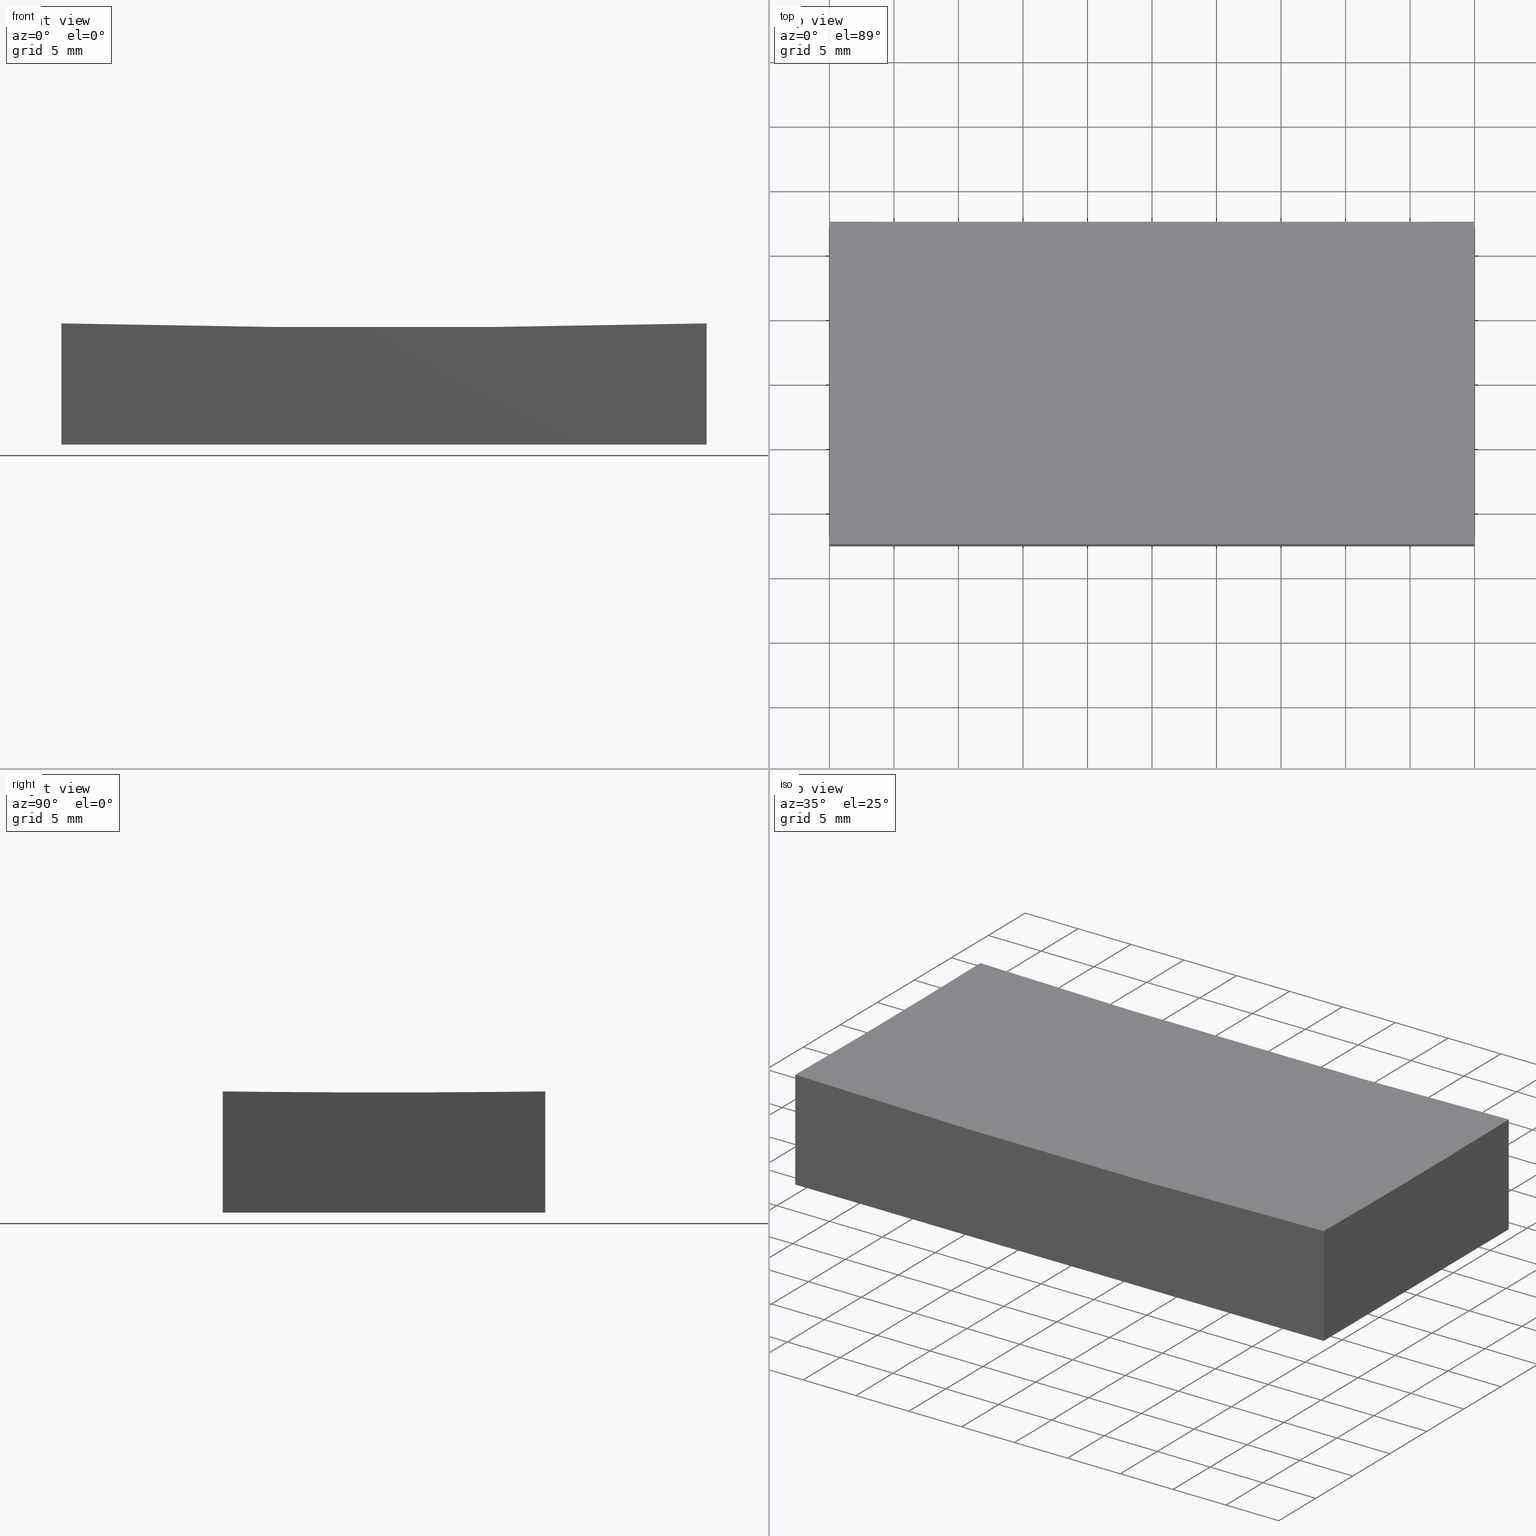
[diagram: canonical four-view strip — front | top / right | iso, engineering-drawing reading convention]
A machine part, canonical four-view strip (front | top / right | iso — engineering-drawing reading convention). The complete STEP part file that produces these views, byte-faithful:
ISO-10303-21;
HEADER;
FILE_DESCRIPTION (( 'STEP AP214' ),
    '1' );
FILE_NAME ('GM13-50x25-500.STEP',
    '2024-08-13T03:19:12',
    ( 'Windows User' ),
    ( 'P R C' ),
    'SwSTEP 2.0',
    'SolidWorks 2022',
    '' );
FILE_SCHEMA (( 'AUTOMOTIVE_DESIGN' ));
ENDSEC;

DATA;
#1 = APPLICATION_CONTEXT ( 'automotive_design' ) ;
#2 = VECTOR ( 'NONE', #8, 1000.000000000000000 ) ;
#3 = AXIS2_PLACEMENT_3D ( 'NONE', #17, #152, #212 ) ;
#4 = EDGE_LOOP ( 'NONE', ( #71, #70, #182, #217, #223 ) ) ;
#5 = LINE ( 'NONE', #66, #110 ) ;
#6 = ORIENTED_EDGE ( 'NONE', *, *, #218, .T. ) ;
#7 = LINE ( 'NONE', #101, #97 ) ;
#8 = DIRECTION ( 'NONE',  ( 1.387778780781445676E-16, -1.000000000000000000, 0.000000000000000000 ) ) ;
#9 = EDGE_CURVE ( 'NONE', #28, #202, #21, .T. ) ;
#10 =( GEOMETRIC_REPRESENTATION_CONTEXT ( 3 ) GLOBAL_UNCERTAINTY_ASSIGNED_CONTEXT ( ( #64 ) ) GLOBAL_UNIT_ASSIGNED_CONTEXT ( ( #192, #232, #107 ) ) REPRESENTATION_CONTEXT ( 'NONE', 'WORKASPACE' ) );
#11 = CARTESIAN_POINT ( 'NONE',  ( -24.99999999999998934, -12.49999999999999645, 9.390701323762185027 ) ) ;
#12 = DIRECTION ( 'NONE',  ( 0.000000000000000000, -1.000000000000000000, -0.000000000000000000 ) ) ;
#13 = DIRECTION ( 'NONE',  ( -0.000000000000000000, -0.000000000000000000, -1.000000000000000000 ) ) ;
#14 = PRODUCT_CONTEXT ( 'NONE', #1, 'mechanical' ) ;
#15 = AXIS2_PLACEMENT_3D ( 'NONE', #213, #244, #89 ) ;
#16 = PLANE ( 'NONE',  #205 ) ;
#17 = CARTESIAN_POINT ( 'NONE',  ( -25.00000000000000000, -3.469446951953614189E-15, 1008.999999999999886 ) ) ;
#18 = EDGE_CURVE ( 'NONE', #160, #28, #162, .T. ) ;
#19 = DIRECTION ( 'NONE',  ( 0.000000000000000000, 0.000000000000000000, -1.000000000000000000 ) ) ;
#20 = VECTOR ( 'NONE', #13, 1000.000000000000000 ) ;
#21 = CIRCLE ( 'NONE', #146, 1000.000000000000000 ) ;
#22 = STYLED_ITEM ( 'NONE', ( #135 ), #177 ) ;
#23 = DIRECTION ( 'NONE',  ( 1.000000000000000000, -2.775557561562891351E-16, -0.000000000000000000 ) ) ;
#24 = UNCERTAINTY_MEASURE_WITH_UNIT (LENGTH_MEASURE( 1.000000000000000082E-05 ), #113, 'distance_accuracy_value', 'NONE');
#25 = ORIENTED_EDGE ( 'NONE', *, *, #56, .F. ) ;
#26 = EDGE_CURVE ( 'NONE', #181, #195, #7, .T. ) ;
#27 = ORIENTED_EDGE ( 'NONE', *, *, #100, .F. ) ;
#28 = VERTEX_POINT ( 'NONE', #224 ) ;
#29 = CARTESIAN_POINT ( 'NONE',  ( 25.00000000000000000, -6.938893903907228378E-15, 1008.999999999999886 ) ) ;
#30 = CARTESIAN_POINT ( 'NONE',  ( -25.00000000000000000, 12.50000000000000000, 0.000000000000000000 ) ) ;
#31 = DIRECTION ( 'NONE',  ( 1.000000000000000000, 0.000000000000000000, 0.000000000000000000 ) ) ;
#32 = ADVANCED_FACE ( 'NONE', ( #48 ), #86, .F. ) ;
#33 = VECTOR ( 'NONE', #131, 1000.000000000000000 ) ;
#34 = CARTESIAN_POINT ( 'NONE',  ( 25.00000000000000355, 12.50000000000000000, 9.390701323762185027 ) ) ;
#35 = EDGE_CURVE ( 'NONE', #201, #175, #5, .T. ) ;
#36 = CARTESIAN_POINT ( 'NONE',  ( 0.000000000000000000, 12.50000000000000000, 1008.999999999999886 ) ) ;
#37 = DIRECTION ( 'NONE',  ( -0.000000000000000000, -0.000000000000000000, -1.000000000000000000 ) ) ;
#38 = STYLED_ITEM ( 'NONE', ( #243 ), #90 ) ;
#39 = ORIENTED_EDGE ( 'NONE', *, *, #77, .T. ) ;
#40 = AXIS2_PLACEMENT_3D ( 'NONE', #230, #171, #185 ) ;
#41 = ORIENTED_EDGE ( 'NONE', *, *, #78, .T. ) ;
#42 = VERTEX_POINT ( 'NONE', #81 ) ;
#43 = VECTOR ( 'NONE', #208, 1000.000000000000000 ) ;
#44 = VERTEX_POINT ( 'NONE', #184 ) ;
#45 = ORIENTED_EDGE ( 'NONE', *, *, #158, .F. ) ;
#46 = DIRECTION ( 'NONE',  ( 0.000000000000000000, 1.000000000000000000, -0.000000000000000000 ) ) ;
#47 = AXIS2_PLACEMENT_3D ( 'NONE', #60, #99, #176 ) ;
#48 = FACE_OUTER_BOUND ( 'NONE', #85, .T. ) ;
#49 = CARTESIAN_POINT ( 'NONE',  ( -25.00000000000000000, 12.50000000000000000, 0.000000000000000000 ) ) ;
#50 = FILL_AREA_STYLE ('',( #242 ) ) ;
#51 = SPHERICAL_SURFACE ( 'NONE', #245, 999.9999999999998863 ) ;
#52 = AXIS2_PLACEMENT_3D ( 'NONE', #153, #92, #227 ) ;
#53 = CARTESIAN_POINT ( 'NONE',  ( 0.000000000000000000, 0.000000000000000000, 1008.999999999999886 ) ) ;
#54 = DIRECTION ( 'NONE',  ( 1.000000000000000000, 0.000000000000000000, 0.000000000000000000 ) ) ;
#55 =( NAMED_UNIT ( * ) SI_UNIT ( $, .STERADIAN. ) SOLID_ANGLE_UNIT ( ) );
#56 = EDGE_CURVE ( 'NONE', #175, #44, #124, .T. ) ;
#57 = CIRCLE ( 'NONE', #198, 999.6874511566102228 ) ;
#58 = DIRECTION ( 'NONE',  ( -0.000000000000000000, 1.000000000000000000, -0.000000000000000000 ) ) ;
#59 = FACE_OUTER_BOUND ( 'NONE', #69, .T. ) ;
#60 = CARTESIAN_POINT ( 'NONE',  ( 0.000000000000000000, -12.49999999999999645, 1008.999999999999886 ) ) ;
#61 = ORIENTED_EDGE ( 'NONE', *, *, #196, .T. ) ;
#62 = CIRCLE ( 'NONE', #3, 999.6874511566102228 ) ;
#63 = ORIENTED_EDGE ( 'NONE', *, *, #241, .F. ) ;
#64 = UNCERTAINTY_MEASURE_WITH_UNIT (LENGTH_MEASURE( 1.000000000000000082E-05 ), #192, 'distance_accuracy_value', 'NONE');
#65 = PRODUCT_DEFINITION ( 'δ֪', '', #123, #219 ) ;
#66 = CARTESIAN_POINT ( 'NONE',  ( -25.00000000000000000, 12.50000000000000000, 15.00000000000000000 ) ) ;
#67 = MECHANICAL_DESIGN_GEOMETRIC_PRESENTATION_REPRESENTATION (  '', ( #22 ), #111 ) ;
#68 = EDGE_LOOP ( 'NONE', ( #25, #165, #178, #166 ) ) ;
#69 = EDGE_LOOP ( 'NONE', ( #222, #238, #126, #161, #45 ) ) ;
#70 = ORIENTED_EDGE ( 'NONE', *, *, #109, .T. ) ;
#71 = ORIENTED_EDGE ( 'NONE', *, *, #18, .F. ) ;
#72 = CARTESIAN_POINT ( 'NONE',  ( 24.99999999999999645, -12.50000000000000000, 15.00000000000000000 ) ) ;
#73 = EDGE_CURVE ( 'NONE', #28, #103, #75, .T. ) ;
#74 = DIRECTION ( 'NONE',  ( 1.000000000000000000, 0.000000000000000000, 0.000000000000000000 ) ) ;
#75 = CIRCLE ( 'NONE', #228, 999.6874511566102228 ) ;
#76 = DIRECTION ( 'NONE',  ( 1.000000000000000000, 1.387778780781445676E-16, -0.000000000000000000 ) ) ;
#77 = EDGE_CURVE ( 'NONE', #122, #44, #95, .T. ) ;
#78 = EDGE_CURVE ( 'NONE', #44, #181, #136, .T. ) ;
#79 = ORIENTED_EDGE ( 'NONE', *, *, #35, .F. ) ;
#80 = UNCERTAINTY_MEASURE_WITH_UNIT (LENGTH_MEASURE( 1.000000000000000082E-05 ), #154, 'distance_accuracy_value', 'NONE');
#81 = CARTESIAN_POINT ( 'NONE',  ( -25.00000000000000000, -3.061616997868383043E-15, 9.312548843389723885 ) ) ;
#82 = ORIENTED_EDGE ( 'NONE', *, *, #9, .F. ) ;
#83 = PRODUCT_DEFINITION_SHAPE ( 'NONE', 'NONE',  #65 ) ;
#84 = APPLICATION_PROTOCOL_DEFINITION ( 'draft international standard', 'automotive_design', 1998, #1 ) ;
#85 = EDGE_LOOP ( 'NONE', ( #63, #39, #41, #163 ) ) ;
#86 = PLANE ( 'NONE',  #116 ) ;
#87 = AXIS2_PLACEMENT_3D ( 'NONE', #137, #76, #174 ) ;
#88 = FILL_AREA_STYLE_COLOUR ( '', #204 ) ;
#89 = DIRECTION ( 'NONE',  ( 1.000000000000000000, 1.224646799147353207E-16, 0.000000000000000000 ) ) ;
#90 = MANIFOLD_SOLID_BREP ( '�г�-��ת1', #234 ) ;
#91 =( NAMED_UNIT ( * ) SI_UNIT ( $, .STERADIAN. ) SOLID_ANGLE_UNIT ( ) );
#92 = DIRECTION ( 'NONE',  ( -1.000000000000000000, 2.775557561562891351E-16, 0.000000000000000000 ) ) ;
#93 = SURFACE_STYLE_USAGE ( .BOTH. , #211 ) ;
#94 = APPLICATION_CONTEXT ( 'automotive_design' ) ;
#95 = LINE ( 'NONE', #117, #33 ) ;
#96 = PLANE ( 'NONE',  #87 ) ;
#97 = VECTOR ( 'NONE', #147, 1000.000000000000000 ) ;
#98 = COLOUR_RGB ( '',1.000000000000000000, 1.000000000000000000, 1.000000000000000000 ) ;
#99 = DIRECTION ( 'NONE',  ( -0.000000000000000000, -1.000000000000000000, -0.000000000000000000 ) ) ;
#100 = EDGE_CURVE ( 'NONE', #42, #202, #104, .T. ) ;
#101 = CARTESIAN_POINT ( 'NONE',  ( 25.00000000000000355, 12.50000000000000000, 0.000000000000000000 ) ) ;
#102 = EDGE_LOOP ( 'NONE', ( #27, #125, #235, #237, #145 ) ) ;
#103 = VERTEX_POINT ( 'NONE', #34 ) ;
#104 = CIRCLE ( 'NONE', #15, 999.9999999999998863 ) ;
#105 = DIRECTION ( 'NONE',  ( 1.000000000000000000, -2.775557561562891351E-16, -0.000000000000000000 ) ) ;
#106 = DIRECTION ( 'NONE',  ( -0.000000000000000000, -0.000000000000000000, -1.000000000000000000 ) ) ;
#107 =( NAMED_UNIT ( * ) SI_UNIT ( $, .STERADIAN. ) SOLID_ANGLE_UNIT ( ) );
#108 = DIRECTION ( 'NONE',  ( -2.776425330088568458E-16, -1.000000000000000000, 0.000000000000000000 ) ) ;
#109 = EDGE_CURVE ( 'NONE', #160, #181, #246, .T. ) ;
#110 = VECTOR ( 'NONE', #106, 1000.000000000000000 ) ;
#111 =( GEOMETRIC_REPRESENTATION_CONTEXT ( 3 ) GLOBAL_UNCERTAINTY_ASSIGNED_CONTEXT ( ( #80 ) ) GLOBAL_UNIT_ASSIGNED_CONTEXT ( ( #154, #247, #91 ) ) REPRESENTATION_CONTEXT ( 'NONE', 'WORKASPACE' ) );
#112 = DIRECTION ( 'NONE',  ( 0.000000000000000000, -1.000000000000000000, -0.000000000000000000 ) ) ;
#113 =( LENGTH_UNIT ( ) NAMED_UNIT ( * ) SI_UNIT ( .MILLI., .METRE. ) );
#114 = SURFACE_SIDE_STYLE ('',( #156 ) ) ;
#115 = CARTESIAN_POINT ( 'NONE',  ( 24.99999999999999645, -12.50000000000000000, 0.000000000000000000 ) ) ;
#116 = AXIS2_PLACEMENT_3D ( 'NONE', #129, #144, #207 ) ;
#117 = CARTESIAN_POINT ( 'NONE',  ( -24.99999999999999645, -12.50000000000000000, 15.00000000000000000 ) ) ;
#118 = DIRECTION ( 'NONE',  ( 0.000000000000000000, -0.000000000000000000, -1.000000000000000000 ) ) ;
#119 = DIRECTION ( 'NONE',  ( -1.000000000000000000, -1.387778780781445676E-16, 0.000000000000000000 ) ) ;
#120 = CARTESIAN_POINT ( 'NONE',  ( -25.00000000000000000, 12.50000000000000000, 9.390701323762185027 ) ) ;
#121 = ORIENTED_EDGE ( 'NONE', *, *, #196, .F. ) ;
#122 = VERTEX_POINT ( 'NONE', #11 ) ;
#123 = PRODUCT_DEFINITION_FORMATION_WITH_SPECIFIED_SOURCE ( '�κ�', '', #179, .NOT_KNOWN. ) ;
#124 = LINE ( 'NONE', #200, #2 ) ;
#125 = ORIENTED_EDGE ( 'NONE', *, *, #158, .T. ) ;
#126 = ORIENTED_EDGE ( 'NONE', *, *, #56, .T. ) ;
#127 = PRESENTATION_LAYER_ASSIGNMENT (  '', '', ( #38 ) ) ;
#128 = DIRECTION ( 'NONE',  ( 0.000000000000000000, 0.000000000000000000, 1.000000000000000000 ) ) ;
#129 = CARTESIAN_POINT ( 'NONE',  ( -24.99999999999999645, -12.50000000000000000, 15.00000000000000000 ) ) ;
#130 = ADVANCED_FACE ( 'NONE', ( #167 ), #151, .F. ) ;
#131 = DIRECTION ( 'NONE',  ( -0.000000000000000000, -0.000000000000000000, -1.000000000000000000 ) ) ;
#132 =( GEOMETRIC_REPRESENTATION_CONTEXT ( 3 ) GLOBAL_UNCERTAINTY_ASSIGNED_CONTEXT ( ( #24 ) ) GLOBAL_UNIT_ASSIGNED_CONTEXT ( ( #113, #172, #55 ) ) REPRESENTATION_CONTEXT ( 'NONE', 'WORKASPACE' ) );
#133 = SURFACE_STYLE_USAGE ( .BOTH. , #114 ) ;
#134 = SPHERICAL_SURFACE ( 'NONE', #139, 999.9999999999998863 ) ;
#135 = PRESENTATION_STYLE_ASSIGNMENT (( #133 ) ) ;
#136 = LINE ( 'NONE', #155, #203 ) ;
#137 = CARTESIAN_POINT ( 'NONE',  ( -25.00000000000000000, 12.50000000000000000, 15.00000000000000000 ) ) ;
#138 = CARTESIAN_POINT ( 'NONE',  ( 25.00000000000000355, 12.50000000000000000, 15.00000000000000000 ) ) ;
#139 = AXIS2_PLACEMENT_3D ( 'NONE', #53, #112, #74 ) ;
#140 = EDGE_LOOP ( 'NONE', ( #206, #236, #82, #221, #61 ) ) ;
#141 = AXIS2_PLACEMENT_3D ( 'NONE', #252, #216, #118 ) ;
#142 = DIRECTION ( 'NONE',  ( -2.776425330088568458E-16, -1.000000000000000000, 0.000000000000000000 ) ) ;
#143 = ADVANCED_FACE ( 'NONE', ( #168 ), #51, .F. ) ;
#144 = DIRECTION ( 'NONE',  ( 0.000000000000000000, 1.000000000000000000, 0.000000000000000000 ) ) ;
#145 = ORIENTED_EDGE ( 'NONE', *, *, #9, .T. ) ;
#146 = AXIS2_PLACEMENT_3D ( 'NONE', #183, #46, #128 ) ;
#147 = DIRECTION ( 'NONE',  ( 2.775557561562891351E-16, 1.000000000000000000, -0.000000000000000000 ) ) ;
#148 = VECTOR ( 'NONE', #37, 1000.000000000000000 ) ;
#149 = ADVANCED_FACE ( 'NONE', ( #191 ), #134, .F. ) ;
#150 = EDGE_LOOP ( 'NONE', ( #121, #6, #164, #79 ) ) ;
#151 = PLANE ( 'NONE',  #52 ) ;
#152 = DIRECTION ( 'NONE',  ( -1.000000000000000000, -1.387778780781445676E-16, 0.000000000000000000 ) ) ;
#153 = CARTESIAN_POINT ( 'NONE',  ( 25.00000000000000355, 12.50000000000000000, 15.00000000000000000 ) ) ;
#154 =( LENGTH_UNIT ( ) NAMED_UNIT ( * ) SI_UNIT ( .MILLI., .METRE. ) );
#155 = CARTESIAN_POINT ( 'NONE',  ( -24.99999999999999645, -12.50000000000000000, 0.000000000000000000 ) ) ;
#156 = SURFACE_STYLE_FILL_AREA ( #50 ) ;
#157 = PLANE ( 'NONE',  #141 ) ;
#158 = EDGE_CURVE ( 'NONE', #42, #122, #62, .T. ) ;
#159 = LINE ( 'NONE', #138, #148 ) ;
#160 = VERTEX_POINT ( 'NONE', #186 ) ;
#161 = ORIENTED_EDGE ( 'NONE', *, *, #77, .F. ) ;
#162 = CIRCLE ( 'NONE', #169, 999.6874511566102228 ) ;
#163 = ORIENTED_EDGE ( 'NONE', *, *, #109, .F. ) ;
#164 = ORIENTED_EDGE ( 'NONE', *, *, #173, .T. ) ;
#165 = ORIENTED_EDGE ( 'NONE', *, *, #173, .F. ) ;
#166 = ORIENTED_EDGE ( 'NONE', *, *, #78, .F. ) ;
#167 = FACE_OUTER_BOUND ( 'NONE', #4, .T. ) ;
#168 = FACE_OUTER_BOUND ( 'NONE', #140, .T. ) ;
#169 = AXIS2_PLACEMENT_3D ( 'NONE', #29, #105, #142 ) ;
#170 = CARTESIAN_POINT ( 'NONE',  ( 0.000000000000000000, 0.000000000000000000, 0.000000000000000000 ) ) ;
#171 = DIRECTION ( 'NONE',  ( 0.000000000000000000, 0.000000000000000000, 1.000000000000000000 ) ) ;
#172 =( NAMED_UNIT ( * ) PLANE_ANGLE_UNIT ( ) SI_UNIT ( $, .RADIAN. ) );
#173 = EDGE_CURVE ( 'NONE', #195, #175, #225, .T. ) ;
#174 = DIRECTION ( 'NONE',  ( -1.387778780781445676E-16, 1.000000000000000000, 0.000000000000000000 ) ) ;
#175 = VERTEX_POINT ( 'NONE', #30 ) ;
#176 = DIRECTION ( 'NONE',  ( 2.842170943040400428E-14, 0.000000000000000000, 1.000000000000000000 ) ) ;
#177 = ADVANCED_BREP_SHAPE_REPRESENTATION ( 'GM13-50x25-500', ( #90, #40 ), #10 ) ;
#178 = ORIENTED_EDGE ( 'NONE', *, *, #26, .F. ) ;
#179 = PRODUCT ( 'GM13-50x25-500', 'GM13-50x25-500', '', ( #14 ) ) ;
#180 = PRODUCT_RELATED_PRODUCT_CATEGORY ( 'part', '', ( #179 ) ) ;
#181 = VERTEX_POINT ( 'NONE', #115 ) ;
#182 = ORIENTED_EDGE ( 'NONE', *, *, #26, .T. ) ;
#183 = CARTESIAN_POINT ( 'NONE',  ( 0.000000000000000000, 0.000000000000000000, 1008.999999999999886 ) ) ;
#184 = CARTESIAN_POINT ( 'NONE',  ( -24.99999999999999645, -12.50000000000000000, 0.000000000000000000 ) ) ;
#185 = DIRECTION ( 'NONE',  ( 1.000000000000000000, 0.000000000000000000, 0.000000000000000000 ) ) ;
#186 = CARTESIAN_POINT ( 'NONE',  ( 24.99999999999999645, -12.50000000000000000, 9.390701323762073116 ) ) ;
#187 = ADVANCED_FACE ( 'NONE', ( #190 ), #16, .F. ) ;
#188 = APPLICATION_PROTOCOL_DEFINITION ( 'draft international standard', 'automotive_design', 1998, #94 ) ;
#189 = SURFACE_STYLE_FILL_AREA ( #229 ) ;
#190 = FACE_OUTER_BOUND ( 'NONE', #68, .T. ) ;
#191 = FACE_OUTER_BOUND ( 'NONE', #102, .T. ) ;
#192 =( LENGTH_UNIT ( ) NAMED_UNIT ( * ) SI_UNIT ( .MILLI., .METRE. ) );
#193 = DIRECTION ( 'NONE',  ( -1.388212665044284229E-16, 1.000000000000000000, 0.000000000000000000 ) ) ;
#194 = CARTESIAN_POINT ( 'NONE',  ( -25.00000000000000000, -3.469446951953614189E-15, 1008.999999999999886 ) ) ;
#195 = VERTEX_POINT ( 'NONE', #250 ) ;
#196 = EDGE_CURVE ( 'NONE', #103, #201, #220, .T. ) ;
#197 = MECHANICAL_DESIGN_GEOMETRIC_PRESENTATION_REPRESENTATION (  '', ( #38 ), #132 ) ;
#198 = AXIS2_PLACEMENT_3D ( 'NONE', #194, #119, #193 ) ;
#199 = ADVANCED_FACE ( 'NONE', ( #59 ), #96, .F. ) ;
#200 = CARTESIAN_POINT ( 'NONE',  ( -25.00000000000000000, 12.50000000000000000, 0.000000000000000000 ) ) ;
#201 = VERTEX_POINT ( 'NONE', #120 ) ;
#202 = VERTEX_POINT ( 'NONE', #215 ) ;
#203 = VECTOR ( 'NONE', #54, 1000.000000000000000 ) ;
#204 = COLOUR_RGB ( '',1.000000000000000000, 1.000000000000000000, 1.000000000000000000 ) ;
#205 = AXIS2_PLACEMENT_3D ( 'NONE', #170, #248, #231 ) ;
#206 = ORIENTED_EDGE ( 'NONE', *, *, #226, .T. ) ;
#207 = DIRECTION ( 'NONE',  ( 0.000000000000000000, -0.000000000000000000, 1.000000000000000000 ) ) ;
#208 = DIRECTION ( 'NONE',  ( -1.000000000000000000, -0.000000000000000000, -0.000000000000000000 ) ) ;
#209 = CARTESIAN_POINT ( 'NONE',  ( 0.000000000000000000, 0.000000000000000000, 1008.999999999999886 ) ) ;
#210 = AXIS2_PLACEMENT_3D ( 'NONE', #36, #58, #19 ) ;
#211 = SURFACE_SIDE_STYLE ('',( #189 ) ) ;
#212 = DIRECTION ( 'NONE',  ( -1.388212665044284229E-16, 1.000000000000000000, 0.000000000000000000 ) ) ;
#213 = CARTESIAN_POINT ( 'NONE',  ( 0.000000000000000000, 0.000000000000000000, 1008.999999999999886 ) ) ;
#214 = FACE_OUTER_BOUND ( 'NONE', #150, .T. ) ;
#215 = CARTESIAN_POINT ( 'NONE',  ( 6.119331653823657559E-14, 0.000000000000000000, 9.000000000000007105 ) ) ;
#216 = DIRECTION ( 'NONE',  ( 0.000000000000000000, -1.000000000000000000, 0.000000000000000000 ) ) ;
#217 = ORIENTED_EDGE ( 'NONE', *, *, #218, .F. ) ;
#218 = EDGE_CURVE ( 'NONE', #103, #195, #159, .T. ) ;
#219 = PRODUCT_DEFINITION_CONTEXT ( 'detailed design', #94, 'design' ) ;
#220 = CIRCLE ( 'NONE', #210, 999.9218719480036270 ) ;
#221 = ORIENTED_EDGE ( 'NONE', *, *, #73, .T. ) ;
#222 = ORIENTED_EDGE ( 'NONE', *, *, #226, .F. ) ;
#223 = ORIENTED_EDGE ( 'NONE', *, *, #73, .F. ) ;
#224 = CARTESIAN_POINT ( 'NONE',  ( 25.00000000000000000, -3.851859888774471706E-31, 9.312548843389723885 ) ) ;
#225 = LINE ( 'NONE', #49, #43 ) ;
#226 = EDGE_CURVE ( 'NONE', #201, #42, #57, .T. ) ;
#227 = DIRECTION ( 'NONE',  ( -2.775557561562891351E-16, -1.000000000000000000, 0.000000000000000000 ) ) ;
#228 = AXIS2_PLACEMENT_3D ( 'NONE', #240, #23, #108 ) ;
#229 = FILL_AREA_STYLE ('',( #88 ) ) ;
#230 = CARTESIAN_POINT ( 'NONE',  ( 0.000000000000000000, 0.000000000000000000, 0.000000000000000000 ) ) ;
#231 = DIRECTION ( 'NONE',  ( 1.000000000000000000, 0.000000000000000000, 0.000000000000000000 ) ) ;
#232 =( NAMED_UNIT ( * ) PLANE_ANGLE_UNIT ( ) SI_UNIT ( $, .RADIAN. ) );
#233 = PRESENTATION_LAYER_ASSIGNMENT (  '', '', ( #22 ) ) ;
#234 = CLOSED_SHELL ( 'NONE', ( #143, #199, #32, #130, #251, #187, #149 ) ) ;
#235 = ORIENTED_EDGE ( 'NONE', *, *, #241, .T. ) ;
#236 = ORIENTED_EDGE ( 'NONE', *, *, #100, .T. ) ;
#237 = ORIENTED_EDGE ( 'NONE', *, *, #18, .T. ) ;
#238 = ORIENTED_EDGE ( 'NONE', *, *, #35, .T. ) ;
#239 = CIRCLE ( 'NONE', #47, 999.9218719480036270 ) ;
#240 = CARTESIAN_POINT ( 'NONE',  ( 25.00000000000000000, -6.938893903907228378E-15, 1008.999999999999886 ) ) ;
#241 = EDGE_CURVE ( 'NONE', #122, #160, #239, .T. ) ;
#242 = FILL_AREA_STYLE_COLOUR ( '', #98 ) ;
#243 = PRESENTATION_STYLE_ASSIGNMENT (( #93 ) ) ;
#244 = DIRECTION ( 'NONE',  ( 1.224646799147353207E-16, -1.000000000000000000, -4.778990533065456234E-36 ) ) ;
#245 = AXIS2_PLACEMENT_3D ( 'NONE', #209, #12, #31 ) ;
#246 = LINE ( 'NONE', #72, #20 ) ;
#247 =( NAMED_UNIT ( * ) PLANE_ANGLE_UNIT ( ) SI_UNIT ( $, .RADIAN. ) );
#248 = DIRECTION ( 'NONE',  ( -0.000000000000000000, 0.000000000000000000, 1.000000000000000000 ) ) ;
#249 = SHAPE_DEFINITION_REPRESENTATION ( #83, #177 ) ;
#250 = CARTESIAN_POINT ( 'NONE',  ( 25.00000000000000355, 12.50000000000000000, 0.000000000000000000 ) ) ;
#251 = ADVANCED_FACE ( 'NONE', ( #214 ), #157, .F. ) ;
#252 = CARTESIAN_POINT ( 'NONE',  ( -25.00000000000000000, 12.50000000000000000, 15.00000000000000000 ) ) ;
ENDSEC;
END-ISO-10303-21;
